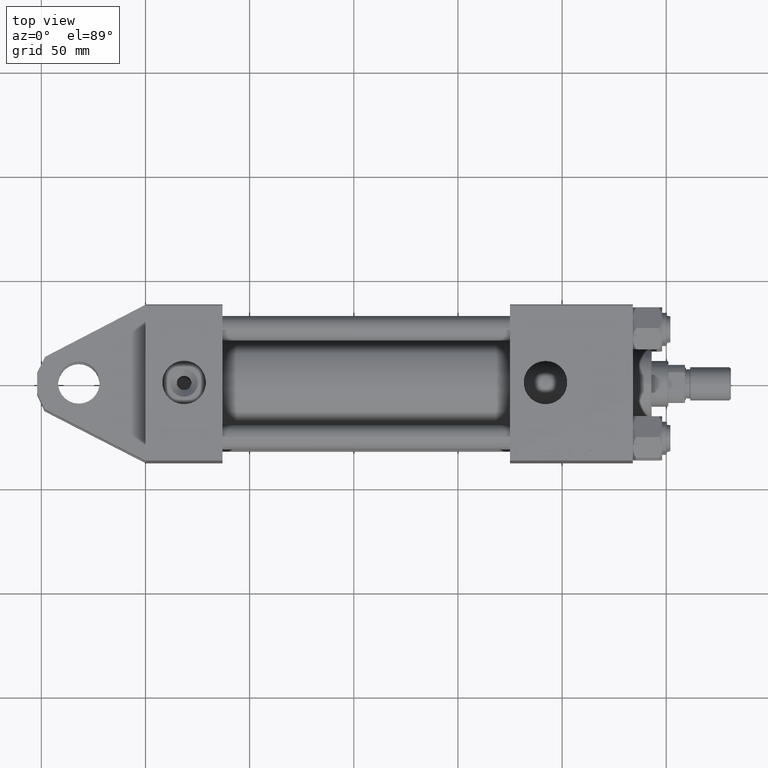
[diagram: clean part render]
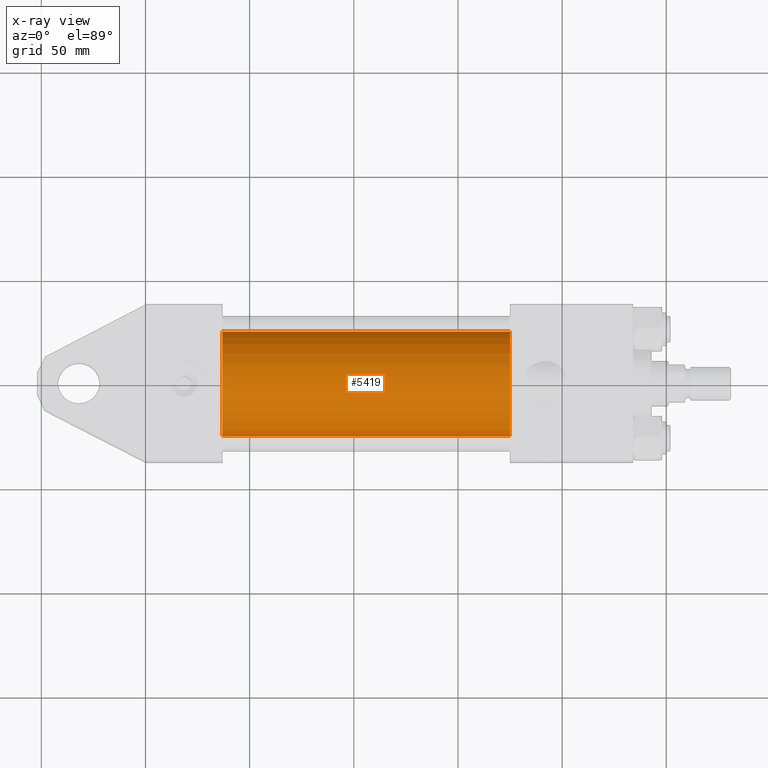
[diagram: x-ray — body ghosted, one internal face saturated and labeled with its STEP entity id]
A machine part, top view, then the same camera in x-ray: the body is ghosted and one INTERNAL B-rep face — a face not visible from any outside direction — is saturated and labeled: STEP entity #5419.
In plain terms, the highlighted cylindrical surface (partial cylindrical patch) has radius 25 mm, axis along (-1, -0, 0).
Its self-contained STEP definition (entity closure, byte-faithful):
#504 = EDGE_CURVE ( 'NONE', #40642, #41802, #7787, .T. ) ;
#3101 = DIRECTION ( 'NONE',  ( 0.000000000000000000, 0.000000000000000000, -1.000000000000000000 ) ) ;
#3235 = CARTESIAN_POINT ( 'NONE',  ( 175.0000000000000284, -4.078299540852309983E-16, -25.00000000000000000 ) ) ;
#5419 = ADVANCED_FACE ( 'NONE', ( #32404 ), #8125, .F. ) ;
#6985 = CARTESIAN_POINT ( 'NONE',  ( 175.0000000000000284, -3.469446951953614189E-15, 25.00000000000000000 ) ) ;
#7787 = CIRCLE ( 'NONE', #44915, 25.00000000000000000 ) ;
#8125 = CYLINDRICAL_SURFACE ( 'NONE', #34908, 25.00000000000000000 ) ;
#14398 = CARTESIAN_POINT ( 'NONE',  ( 175.0000000000000284, -3.469446951953614189E-15, 0.000000000000000000 ) ) ;
#15850 = ORIENTED_EDGE ( 'NONE', *, *, #39870, .F. ) ;
#16164 = ORIENTED_EDGE ( 'NONE', *, *, #29503, .F. ) ;
#18100 = DIRECTION ( 'NONE',  ( 0.000000000000000000, 0.000000000000000000, -1.000000000000000000 ) ) ;
#18443 = ORIENTED_EDGE ( 'NONE', *, *, #504, .T. ) ;
#19065 = DIRECTION ( 'NONE',  ( -1.000000000000000000, -0.000000000000000000, -0.000000000000000000 ) ) ;
#19298 = CARTESIAN_POINT ( 'NONE',  ( 37.00000000000000000, -3.469446951953614189E-15, 25.00000000000000000 ) ) ;
#20022 = DIRECTION ( 'NONE',  ( -1.000000000000000000, -0.000000000000000000, -0.000000000000000000 ) ) ;
#22448 = EDGE_LOOP ( 'NONE', ( #18443, #42697, #15850, #16164 ) ) ;
#23097 = LINE ( 'NONE', #6985, #23349 ) ;
#23349 = VECTOR ( 'NONE', #39184, 1000.000000000000000 ) ;
#23681 = CARTESIAN_POINT ( 'NONE',  ( 37.00000000000000000, -3.469446951953614189E-15, 0.000000000000000000 ) ) ;
#23833 = CARTESIAN_POINT ( 'NONE',  ( 37.00000000000000000, -4.078299540852309983E-16, -25.00000000000000000 ) ) ;
#28155 = DIRECTION ( 'NONE',  ( 1.000000000000000000, 0.000000000000000000, 0.000000000000000000 ) ) ;
#29341 = CARTESIAN_POINT ( 'NONE',  ( 175.0000000000000284, -3.469446951953614189E-15, 25.00000000000000000 ) ) ;
#29503 = EDGE_CURVE ( 'NONE', #40642, #48361, #23097, .T. ) ;
#31139 = CIRCLE ( 'NONE', #34496, 25.00000000000000000 ) ;
#32404 = FACE_OUTER_BOUND ( 'NONE', #22448, .T. ) ;
#34466 = DIRECTION ( 'NONE',  ( 1.000000000000000000, 0.000000000000000000, 0.000000000000000000 ) ) ;
#34496 = AXIS2_PLACEMENT_3D ( 'NONE', #23681, #28155, #3101 ) ;
#34908 = AXIS2_PLACEMENT_3D ( 'NONE', #35585, #20022, #36108 ) ;
#35585 = CARTESIAN_POINT ( 'NONE',  ( 175.0000000000000284, -3.469446951953614189E-15, 0.000000000000000000 ) ) ;
#36108 = DIRECTION ( 'NONE',  ( 0.000000000000000000, 0.000000000000000000, 1.000000000000000000 ) ) ;
#39184 = DIRECTION ( 'NONE',  ( -1.000000000000000000, -0.000000000000000000, -0.000000000000000000 ) ) ;
#39318 = CARTESIAN_POINT ( 'NONE',  ( 175.0000000000000284, -4.078299540852309983E-16, -25.00000000000000000 ) ) ;
#39552 = EDGE_CURVE ( 'NONE', #41802, #42521, #47836, .T. ) ;
#39870 = EDGE_CURVE ( 'NONE', #48361, #42521, #31139, .T. ) ;
#40642 = VERTEX_POINT ( 'NONE', #29341 ) ;
#41802 = VERTEX_POINT ( 'NONE', #39318 ) ;
#42521 = VERTEX_POINT ( 'NONE', #23833 ) ;
#42697 = ORIENTED_EDGE ( 'NONE', *, *, #39552, .T. ) ;
#44915 = AXIS2_PLACEMENT_3D ( 'NONE', #14398, #34466, #18100 ) ;
#47151 = VECTOR ( 'NONE', #19065, 1000.000000000000000 ) ;
#47836 = LINE ( 'NONE', #3235, #47151 ) ;
#48361 = VERTEX_POINT ( 'NONE', #19298 ) ;